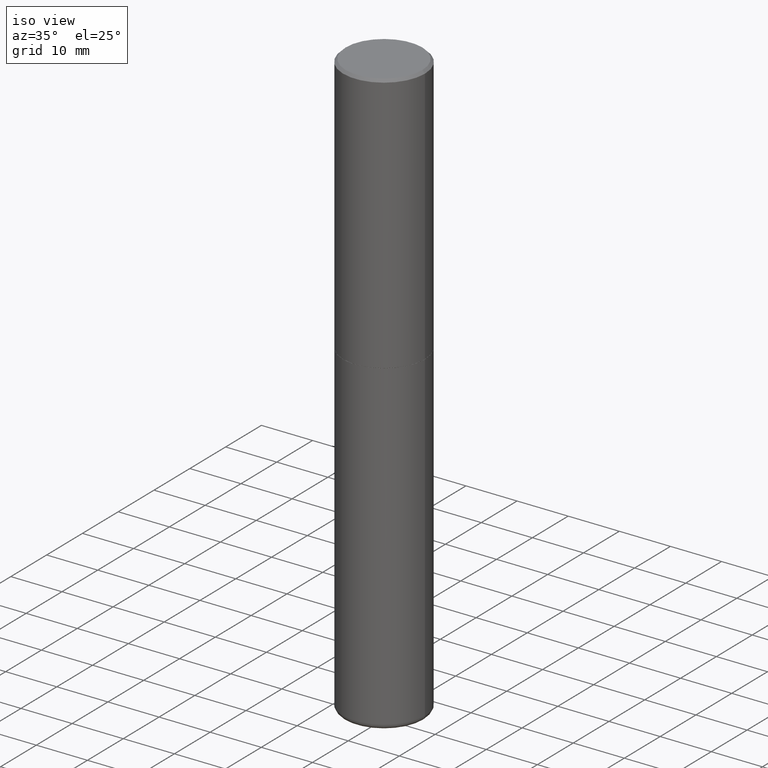
[diagram: clean part render]
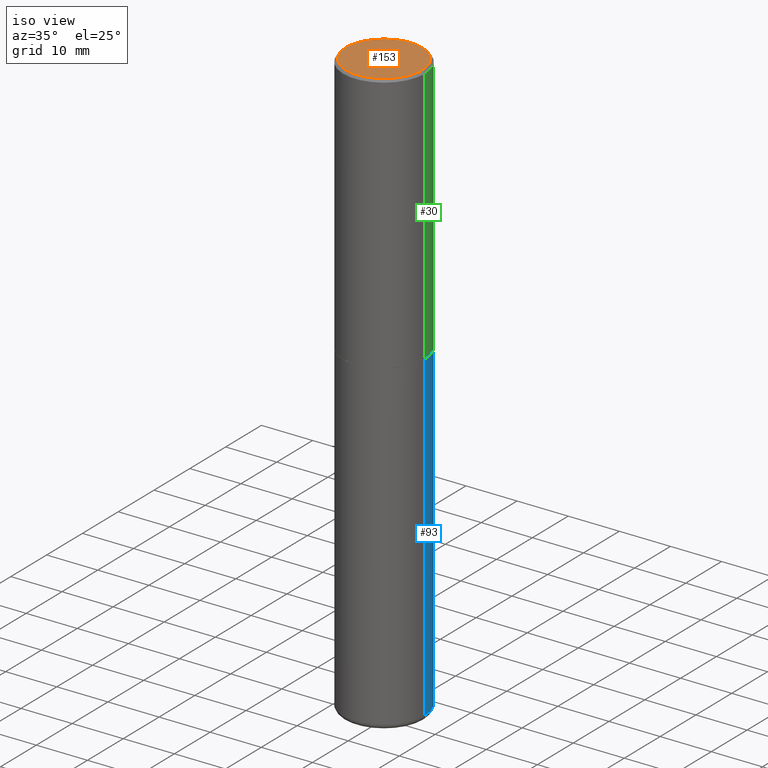
[diagram: same view with three faces highlighted in distinct colors, each labeled with its STEP entity id]
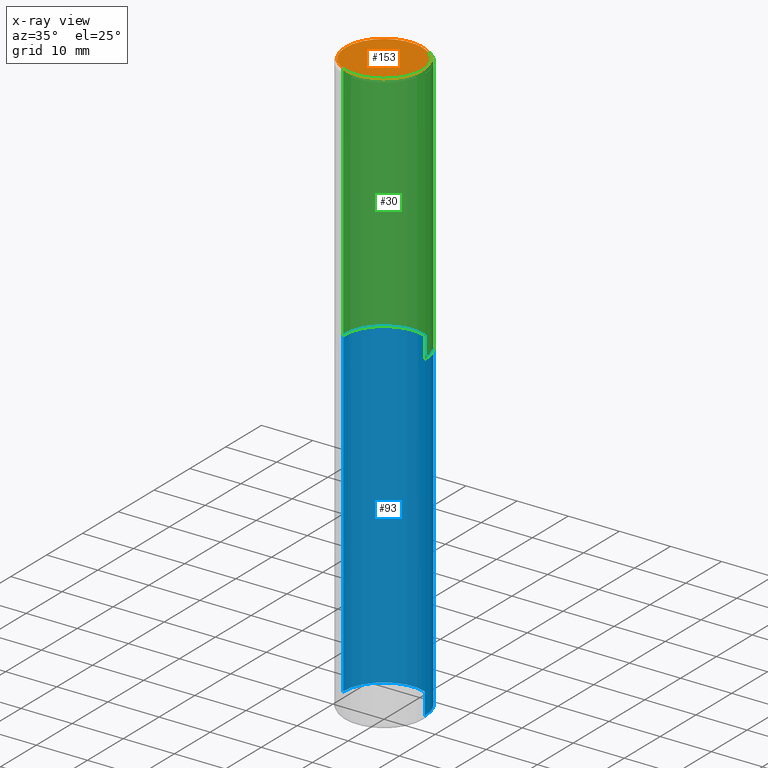
[diagram: x-ray of the same camera — body ghosted, the three highlighted faces saturated]
A machine part, iso view with three faces highlighted in distinct colors.
The next image is the same camera in x-ray (body ghosted, the three faces saturated) — at least one of them is partly hidden behind the body in this view.
Their STEP definitions:

[orange] entity #153 — the highlighted planar face has unit normal (0, -0, -1).
#13 = DIRECTION ( 'NONE',  ( 1.000000000000000000, -6.982962677686265922E-15, 4.874125435057325556E-29 ) ) ;
#46 = EDGE_CURVE ( 'NONE', #332, #75, #130, .T. ) ;
#59 = CARTESIAN_POINT ( 'NONE',  ( 2.059624841783562486E-15, 0.2949499999999997679, -9.380394023546260134E-16 ) ) ;
#67 = PLANE ( 'NONE',  #101 ) ;
#75 = VERTEX_POINT ( 'NONE', #395 ) ;
#84 = DIRECTION ( 'NONE',  ( -2.445468806185136597E-29, 3.491481338843145583E-15, 1.000000000000000000 ) ) ;
#101 = AXIS2_PLACEMENT_3D ( 'NONE', #59, #350, #184 ) ;
#104 = ORIENTED_EDGE ( 'NONE', *, *, #46, .T. ) ;
#112 = CARTESIAN_POINT ( 'NONE',  ( -4.488561081641444621E-45, 6.408475632635922878E-31, 1.835460370743176819E-16 ) ) ;
#116 = AXIS2_PLACEMENT_3D ( 'NONE', #112, #297, #13 ) ;
#130 = CIRCLE ( 'NONE', #228, 0.2949499999999997679 ) ;
#134 = EDGE_LOOP ( 'NONE', ( #104, #238 ) ) ;
#153 = ADVANCED_FACE ( 'NONE', ( #415 ), #67, .F. ) ;
#184 = DIRECTION ( 'NONE',  ( -1.000000000000000000, 6.982962677686265922E-15, -4.876176775795935793E-29 ) ) ;
#201 = CARTESIAN_POINT ( 'NONE',  ( -4.488561081641444621E-45, 6.408475632635922878E-31, 1.835460370743176819E-16 ) ) ;
#228 = AXIS2_PLACEMENT_3D ( 'NONE', #201, #84, #233 ) ;
#233 = DIRECTION ( 'NONE',  ( 1.000000000000000000, -6.982962677686265922E-15, 4.874125435057325556E-29 ) ) ;
#236 = CARTESIAN_POINT ( 'NONE',  ( -0.2949499999999997679, 2.094539655171994924E-15, 1.835460370743031619E-16 ) ) ;
#238 = ORIENTED_EDGE ( 'NONE', *, *, #291, .T. ) ;
#291 = EDGE_CURVE ( 'NONE', #75, #332, #392, .T. ) ;
#297 = DIRECTION ( 'NONE',  ( -2.445468806185136597E-29, 3.491481338843145583E-15, 1.000000000000000000 ) ) ;
#332 = VERTEX_POINT ( 'NONE', #236 ) ;
#350 = DIRECTION ( 'NONE',  ( 2.438088387897960049E-29, -3.491481338843145188E-15, -1.000000000000000000 ) ) ;
#392 = CIRCLE ( 'NONE', #116, 0.2949499999999997679 ) ;
#395 = CARTESIAN_POINT ( 'NONE',  ( 0.2949499999999997679, -2.127023677808858891E-15, 1.835460370743323251E-16 ) ) ;
#415 = FACE_OUTER_BOUND ( 'NONE', #134, .T. ) ;

[blue] entity #93 — the highlighted cylindrical surface (partial cylindrical patch) has radius 7.9997 mm, axis along (-0, 0, 1).
#14 = DIRECTION ( 'NONE',  ( -2.445468806185136597E-29, 3.491481338843145583E-15, 1.000000000000000000 ) ) ;
#21 = ORIENTED_EDGE ( 'NONE', *, *, #123, .T. ) ;
#34 = VECTOR ( 'NONE', #242, 39.37007874015748143 ) ;
#42 = ORIENTED_EDGE ( 'NONE', *, *, #128, .F. ) ;
#51 = CIRCLE ( 'NONE', #79, 0.3149500000000000077 ) ;
#53 = CARTESIAN_POINT ( 'NONE',  ( 4.910256815939135870E-29, -7.010545380263151710E-15, -2.007899999999999796 ) ) ;
#55 = CARTESIAN_POINT ( 'NONE',  ( -0.3149500000000000077, -9.102651616353041816E-15, -2.007899999999999796 ) ) ;
#57 = ORIENTED_EDGE ( 'NONE', *, *, #58, .F. ) ;
#58 = EDGE_CURVE ( 'NONE', #326, #287, #222, .T. ) ;
#62 = CARTESIAN_POINT ( 'NONE',  ( 0.3149500000000000077, -2.199284095337289871E-15, 1.535751875536930130E-29 ) ) ;
#64 = DIRECTION ( 'NONE',  ( -2.445468806185136597E-29, 3.491481338843145583E-15, 1.000000000000000000 ) ) ;
#73 = EDGE_CURVE ( 'NONE', #396, #287, #338, .T. ) ;
#79 = AXIS2_PLACEMENT_3D ( 'NONE', #119, #64, #211 ) ;
#80 = AXIS2_PLACEMENT_3D ( 'NONE', #53, #172, #189 ) ;
#87 = CARTESIAN_POINT ( 'NONE',  ( 0.3149499999999998967, -1.786975064033308982E-14, -4.488199999999999079 ) ) ;
#93 = ADVANCED_FACE ( 'NONE', ( #273 ), #408, .T. ) ;
#119 = CARTESIAN_POINT ( 'NONE',  ( 1.097575309592012950E-28, -1.567046654499580152E-14, -4.488199999999999079 ) ) ;
#123 = EDGE_CURVE ( 'NONE', #221, #396, #51, .T. ) ;
#128 = EDGE_CURVE ( 'NONE', #221, #326, #181, .T. ) ;
#141 = CARTESIAN_POINT ( 'NONE',  ( 0.000000000000000000, 0.000000000000000000, 0.000000000000000000 ) ) ;
#164 = DIRECTION ( 'NONE',  ( -2.445468806185136877E-29, 3.491481338843145188E-15, 1.000000000000000000 ) ) ;
#172 = DIRECTION ( 'NONE',  ( -2.445468806185136597E-29, 3.491481338843145583E-15, 1.000000000000000000 ) ) ;
#173 = ORIENTED_EDGE ( 'NONE', *, *, #73, .T. ) ;
#181 = LINE ( 'NONE', #62, #34 ) ;
#189 = DIRECTION ( 'NONE',  ( 1.000000000000000000, -6.982962677686263555E-15, 0.000000000000000000 ) ) ;
#199 = DIRECTION ( 'NONE',  ( 1.000000000000000000, -6.982962677686266711E-15, 4.876176775795936353E-29 ) ) ;
#211 = DIRECTION ( 'NONE',  ( 1.000000000000000000, -6.982962677686269866E-15, 0.000000000000000000 ) ) ;
#217 = AXIS2_PLACEMENT_3D ( 'NONE', #141, #14, #199 ) ;
#221 = VERTEX_POINT ( 'NONE', #87 ) ;
#222 = CIRCLE ( 'NONE', #80, 0.3149500000000000077 ) ;
#242 = DIRECTION ( 'NONE',  ( -2.445468806185136877E-29, 3.491481338843145188E-15, 1.000000000000000000 ) ) ;
#273 = FACE_OUTER_BOUND ( 'NONE', #289, .T. ) ;
#287 = VERTEX_POINT ( 'NONE', #55 ) ;
#289 = EDGE_LOOP ( 'NONE', ( #21, #173, #57, #42 ) ) ;
#305 = CARTESIAN_POINT ( 'NONE',  ( -0.3149500000000000077, 2.237854346276435590E-15, -1.549218606675782676E-29 ) ) ;
#322 = VECTOR ( 'NONE', #164, 39.37007874015748143 ) ;
#326 = VERTEX_POINT ( 'NONE', #397 ) ;
#338 = LINE ( 'NONE', #305, #322 ) ;
#352 = CARTESIAN_POINT ( 'NONE',  ( -0.3149499999999998967, -1.343261219871936712E-14, -4.488199999999999079 ) ) ;
#396 = VERTEX_POINT ( 'NONE', #352 ) ;
#397 = CARTESIAN_POINT ( 'NONE',  ( 0.3149500000000000077, -9.209829475600440793E-15, -2.007899999999999796 ) ) ;
#408 = CYLINDRICAL_SURFACE ( 'NONE', #217, 0.3149500000000000077 ) ;

[green] entity #30 — the highlighted cylindrical surface (partial cylindrical patch) has radius 7.9997 mm, axis along (-0, 0, 1).
#3 = ORIENTED_EDGE ( 'NONE', *, *, #65, .T. ) ;
#8 = CARTESIAN_POINT ( 'NONE',  ( 0.000000000000000000, 0.000000000000000000, 0.000000000000000000 ) ) ;
#10 = CARTESIAN_POINT ( 'NONE',  ( -0.3149499999999999522, 2.129454468560426178E-15, -0.02000000000000006981 ) ) ;
#30 = ADVANCED_FACE ( 'NONE', ( #365 ), #266, .T. ) ;
#33 = EDGE_CURVE ( 'NONE', #89, #158, #320, .T. ) ;
#65 = EDGE_CURVE ( 'NONE', #158, #359, #296, .T. ) ;
#82 = DIRECTION ( 'NONE',  ( -2.445468806185136597E-29, 3.491481338843145583E-15, 1.000000000000000000 ) ) ;
#89 = VERTEX_POINT ( 'NONE', #195 ) ;
#94 = AXIS2_PLACEMENT_3D ( 'NONE', #8, #82, #403 ) ;
#103 = EDGE_LOOP ( 'NONE', ( #111, #3, #162, #387 ) ) ;
#111 = ORIENTED_EDGE ( 'NONE', *, *, #33, .T. ) ;
#138 = DIRECTION ( 'NONE',  ( 1.000000000000000000, -6.982962677686267499E-15, 0.000000000000000000 ) ) ;
#158 = VERTEX_POINT ( 'NONE', #413 ) ;
#159 = CARTESIAN_POINT ( 'NONE',  ( 4.907811347132950267E-29, -7.007053898924307914E-15, -2.006899999999999906 ) ) ;
#162 = ORIENTED_EDGE ( 'NONE', *, *, #385, .F. ) ;
#163 = DIRECTION ( 'NONE',  ( 1.000000000000000000, -6.982962677686266711E-15, 0.000000000000000000 ) ) ;
#171 = VECTOR ( 'NONE', #405, 39.37007874015748143 ) ;
#185 = AXIS2_PLACEMENT_3D ( 'NONE', #159, #190, #138 ) ;
#190 = DIRECTION ( 'NONE',  ( -2.445468806185136597E-29, 3.491481338843145583E-15, 1.000000000000000000 ) ) ;
#195 = CARTESIAN_POINT ( 'NONE',  ( 0.3149500000000002853, -9.206337994261599363E-15, -2.006899999999999906 ) ) ;
#206 = AXIS2_PLACEMENT_3D ( 'NONE', #333, #374, #163 ) ;
#207 = LINE ( 'NONE', #300, #285 ) ;
#243 = EDGE_CURVE ( 'NONE', #89, #339, #207, .T. ) ;
#266 = CYLINDRICAL_SURFACE ( 'NONE', #94, 0.3149500000000001743 ) ;
#267 = CIRCLE ( 'NONE', #206, 0.3149499999999999522 ) ;
#285 = VECTOR ( 'NONE', #340, 39.37007874015748143 ) ;
#296 = LINE ( 'NONE', #363, #171 ) ;
#300 = CARTESIAN_POINT ( 'NONE',  ( 0.3149500000000001743, -2.199284095337290660E-15, 1.535751875536930690E-29 ) ) ;
#320 = CIRCLE ( 'NONE', #185, 0.3149500000000002853 ) ;
#331 = CARTESIAN_POINT ( 'NONE',  ( 0.3149499999999999522, -2.230543471175006661E-15, -0.02000000000000006981 ) ) ;
#333 = CARTESIAN_POINT ( 'NONE',  ( 4.890937612370289799E-31, -6.982962677686315028E-17, -0.02000000000000006981 ) ) ;
#339 = VERTEX_POINT ( 'NONE', #331 ) ;
#340 = DIRECTION ( 'NONE',  ( -2.445468806185136877E-29, 3.491481338843145188E-15, 1.000000000000000000 ) ) ;
#359 = VERTEX_POINT ( 'NONE', #10 ) ;
#363 = CARTESIAN_POINT ( 'NONE',  ( -0.3149500000000001743, 2.237854346276436774E-15, -1.549218606675783237E-29 ) ) ;
#365 = FACE_OUTER_BOUND ( 'NONE', #103, .T. ) ;
#374 = DIRECTION ( 'NONE',  ( -2.445468806185136597E-29, 3.491481338843145583E-15, 1.000000000000000000 ) ) ;
#385 = EDGE_CURVE ( 'NONE', #339, #359, #267, .T. ) ;
#387 = ORIENTED_EDGE ( 'NONE', *, *, #243, .F. ) ;
#403 = DIRECTION ( 'NONE',  ( 1.000000000000000000, -6.982962677686265922E-15, 4.876176775795935232E-29 ) ) ;
#405 = DIRECTION ( 'NONE',  ( -2.445468806185136877E-29, 3.491481338843145188E-15, 1.000000000000000000 ) ) ;
#413 = CARTESIAN_POINT ( 'NONE',  ( -0.3149500000000002853, -1.300587416574145677E-15, -2.006899999999999906 ) ) ;